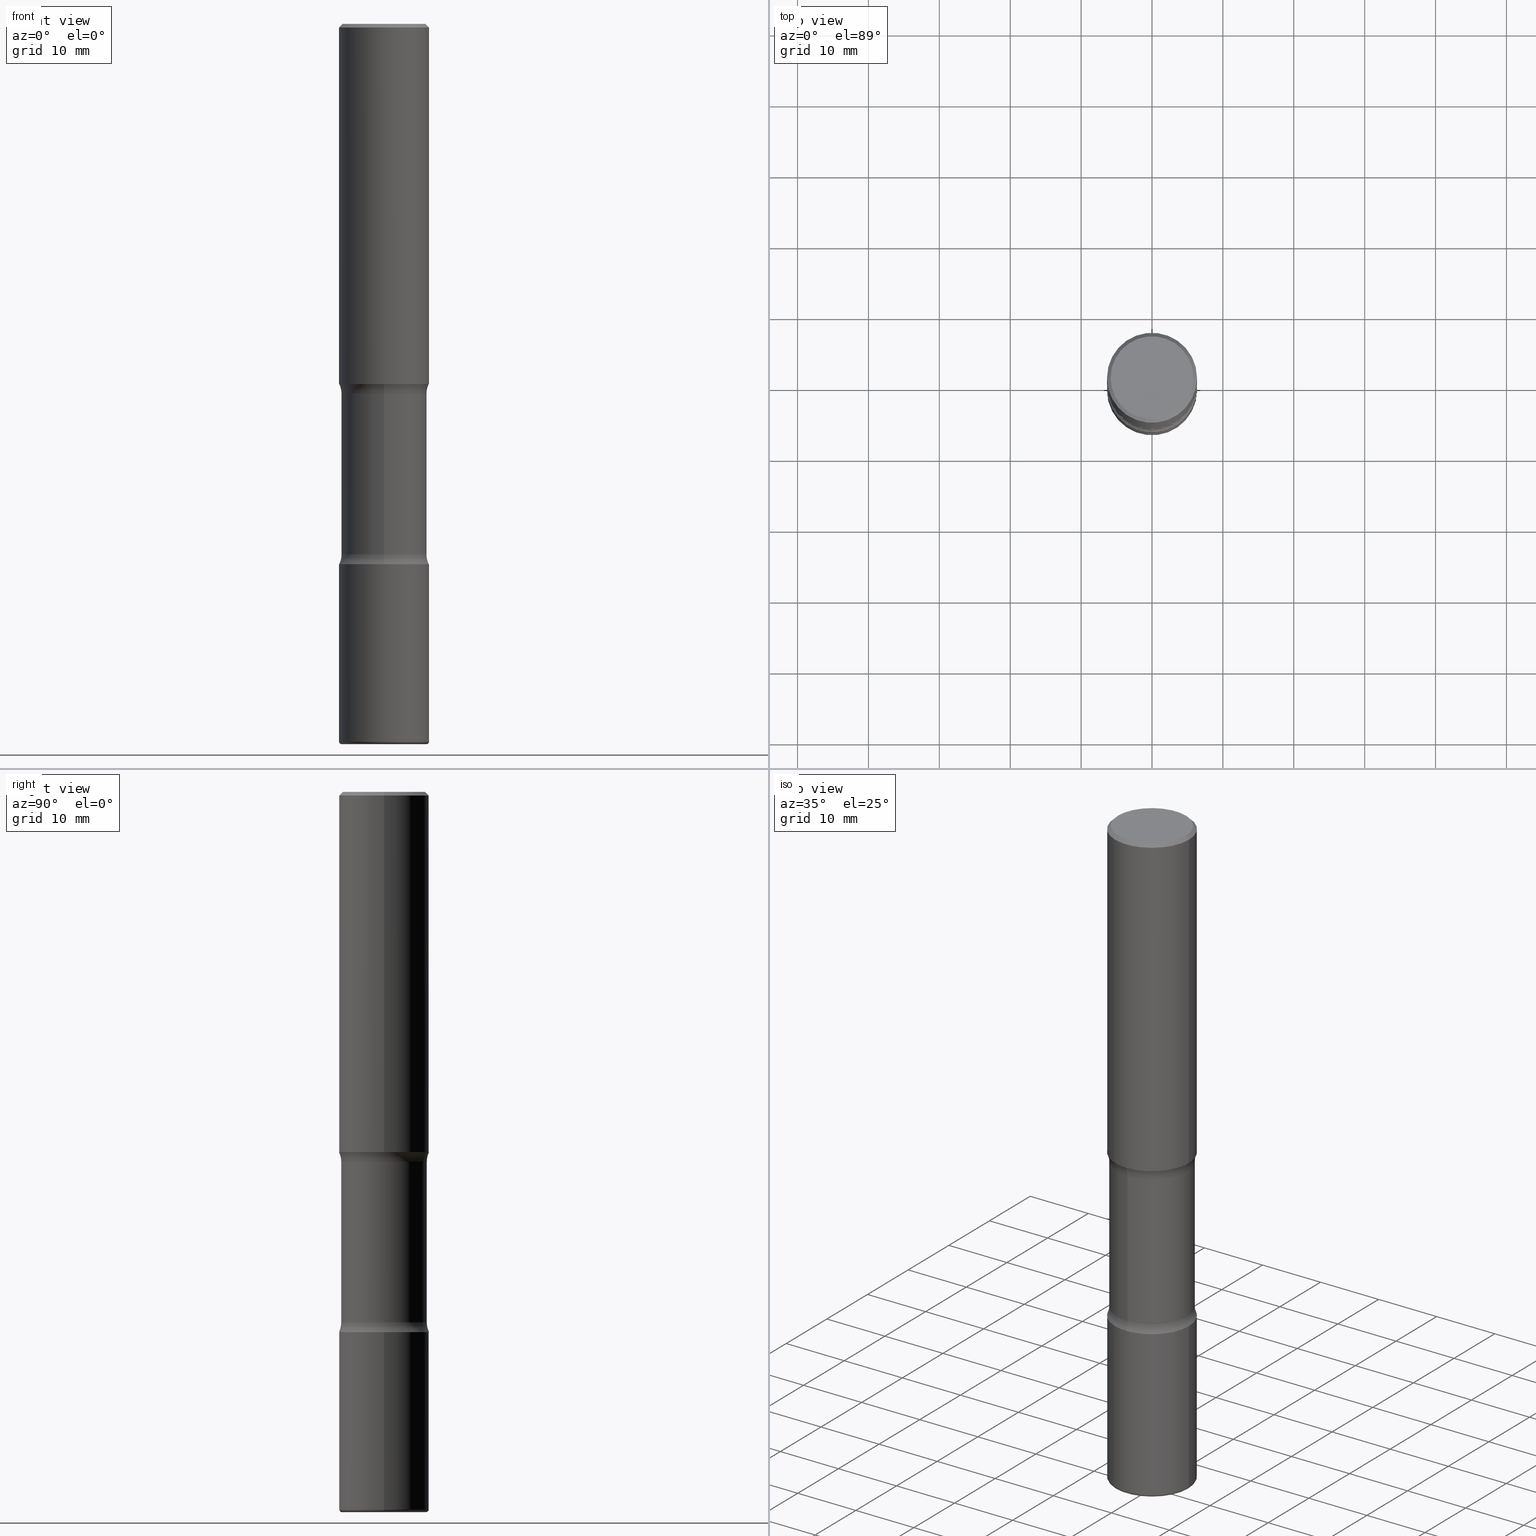
[diagram: canonical four-view strip — front | top / right | iso, engineering-drawing reading convention]
A machine part, canonical four-view strip (front | top / right | iso — engineering-drawing reading convention). The complete STEP part file that produces these views, byte-faithful:
ISO-10303-21;
HEADER;
FILE_DESCRIPTION (( 'STEP AP203' ),
    '1' );
FILE_NAME ('37875.STEP',
    '2024-03-02T00:58:17',
    ( '' ),
    ( '' ),
    'SwSTEP 2.0',
    'SolidWorks 2023',
    '' );
FILE_SCHEMA (( 'CONFIG_CONTROL_DESIGN' ));
ENDSEC;

DATA;
#1 = FACE_OUTER_BOUND ( 'NONE', #440, .T. ) ;
#2 = ADVANCED_FACE ( 'NONE', ( #272 ), #51, .T. ) ;
#3 = ORIENTED_EDGE ( 'NONE', *, *, #383, .T. ) ;
#4 = ORIENTED_EDGE ( 'NONE', *, *, #541, .T. ) ;
#5 = AXIS2_PLACEMENT_3D ( 'NONE', #339, #54, #244 ) ;
#6 = AXIS2_PLACEMENT_3D ( 'NONE', #296, #527, #111 ) ;
#7 = EDGE_LOOP ( 'NONE', ( #414, #81, #521, #128 ) ) ;
#8 = ORIENTED_EDGE ( 'NONE', *, *, #192, .F. ) ;
#9 = CARTESIAN_POINT ( 'NONE',  ( -1.672246386956763723E-15, -0.2375000000000074274, -2.054486236794258236 ) ) ;
#10 = EDGE_CURVE ( 'NONE', #130, #459, #42, .T. ) ;
#11 = DIRECTION ( 'NONE',  ( 1.000000000000000000, -6.982962677686266711E-15, 4.876176775795935793E-29 ) ) ;
#12 = CYLINDRICAL_SURFACE ( 'NONE', #313, 0.2500000000000000555 ) ;
#13 = DIRECTION ( 'NONE',  ( 1.000000000000000000, -6.982962677686267499E-15, 4.876176775795936353E-29 ) ) ;
#14 = DIRECTION ( 'NONE',  ( -1.000000000000000000, 6.982962677686265922E-15, -4.876176775795935793E-29 ) ) ;
#15 = CLOSED_SHELL ( 'NONE', ( #282, #406, #532, #213, #242, #35 ) ) ;
#16 = AXIS2_PLACEMENT_3D ( 'NONE', #26, #357, #25 ) ;
#17 = AXIS2_PLACEMENT_3D ( 'NONE', #143, #448, #489 ) ;
#18 = DIRECTION ( 'NONE',  ( -2.445468806185136597E-29, 3.491481338843145583E-15, 1.000000000000000000 ) ) ;
#19 = ORIENTED_EDGE ( 'NONE', *, *, #95, .T. ) ;
#20 = CIRCLE ( 'NONE', #300, 0.1250000000000000000 ) ;
#21 = APPLICATION_CONTEXT ( 'configuration controlled 3d designs of mechanical parts and assemblies' ) ;
#22 = AXIS2_PLACEMENT_3D ( 'NONE', #49, #523, #439 ) ;
#23 = AXIS2_PLACEMENT_3D ( 'NONE', #538, #303, #498 ) ;
#24 = CALENDAR_DATE ( 2024, 1, 3 ) ;
#25 = DIRECTION ( 'NONE',  ( 6.982962677686265133E-15, 1.000000000000000000, -3.278217592397110735E-15 ) ) ;
#26 = CARTESIAN_POINT ( 'NONE',  ( 4.806027966243888288E-29, -7.104558123696206156E-15, -2.000000000000000000 ) ) ;
#27 = AXIS2_PLACEMENT_3D ( 'NONE', #379, #455, #446 ) ;
#28 = APPROVAL_PERSON_ORGANIZATION ( #256, #38, #67 ) ;
#29 = DIRECTION ( 'NONE',  ( 6.982962677686265922E-15, 1.000000000000000000, -3.369885892833230986E-15 ) ) ;
#30 = EDGE_CURVE ( 'NONE', #459, #130, #363, .T. ) ;
#31 = DIRECTION ( 'NONE',  ( -2.445468806185136877E-29, 3.491481338843145188E-15, 1.000000000000000000 ) ) ;
#32 = PRODUCT_RELATED_PRODUCT_CATEGORY ( 'detail', '', ( #276 ) ) ;
#33 = ORIENTED_EDGE ( 'NONE', *, *, #44, .F. ) ;
#34 = DIRECTION ( 'NONE',  ( 2.530378452311521502E-29, -3.369885892833230986E-15, -1.000000000000000000 ) ) ;
#35 = ADVANCED_FACE ( 'NONE', ( #187 ), #12, .T. ) ;
#36 = AXIS2_PLACEMENT_3D ( 'NONE', #372, #94, #194 ) ;
#37 = FACE_OUTER_BOUND ( 'NONE', #91, .T. ) ;
#38 = APPROVAL ( #45, 'UNSPECIFIED' ) ;
#39 = DIRECTION ( 'NONE',  ( 6.982962677686265922E-15, 1.000000000000000000, -4.370956789862816416E-15 ) ) ;
#40 = FACE_OUTER_BOUND ( 'NONE', #7, .T. ) ;
#41 = ORIENTED_EDGE ( 'NONE', *, *, #243, .F. ) ;
#42 = CIRCLE ( 'NONE', #386, 0.2500000000000002776 ) ;
#43 = AXIS2_PLACEMENT_3D ( 'NONE', #382, #267, #87 ) ;
#44 = EDGE_CURVE ( 'NONE', #61, #105, #279, .T. ) ;
#45 = APPROVAL_STATUS ( 'not_yet_approved' ) ;
#46 = DIRECTION ( 'NONE',  ( -6.982962677686265922E-15, -1.000000000000000000, 3.369885892833230592E-15 ) ) ;
#47 = ORIENTED_EDGE ( 'NONE', *, *, #233, .F. ) ;
#48 = CARTESIAN_POINT ( 'NONE',  ( 9.866784870866931853E-29, -1.384432990936266734E-14, -4.000000000000000000 ) ) ;
#49 = CARTESIAN_POINT ( 'NONE',  ( 7.203162026108633562E-29, -1.028420633753849345E-14, -2.945513763205741320 ) ) ;
#50 = ORIENTED_EDGE ( 'NONE', *, *, #182, .T. ) ;
#51 = CYLINDRICAL_SURFACE ( 'NONE', #342, 0.2375000000000000999 ) ;
#52 = DIRECTION ( 'NONE',  ( 6.982962677686265922E-15, 1.000000000000000000, -3.369885892833230592E-15 ) ) ;
#53 = EDGE_LOOP ( 'NONE', ( #306, #60, #295, #482 ) ) ;
#54 = DIRECTION ( 'NONE',  ( -2.445468806185136597E-29, 3.491481338843145583E-15, 1.000000000000000000 ) ) ;
#55 = ORIENTED_EDGE ( 'NONE', *, *, #305, .F. ) ;
#56 = DIRECTION ( 'NONE',  ( -2.445468806185136597E-29, 3.491481338843145583E-15, 1.000000000000000000 ) ) ;
#57 = ORIENTED_EDGE ( 'NONE', *, *, #165, .F. ) ;
#58 = VECTOR ( 'NONE', #511, 39.37007874015748143 ) ;
#59 = CARTESIAN_POINT ( 'NONE',  ( 4.806027966243888288E-29, -7.104558123696206156E-15, -2.000000000000000000 ) ) ;
#60 = ORIENTED_EDGE ( 'NONE', *, *, #44, .T. ) ;
#61 = VERTEX_POINT ( 'NONE', #9 ) ;
#62 = VERTEX_POINT ( 'NONE', #405 ) ;
#63 = ORIENTED_EDGE ( 'NONE', *, *, #367, .F. ) ;
#64 = EDGE_LOOP ( 'NONE', ( #444, #249, #131, #369 ) ) ;
#65 = AXIS2_PLACEMENT_3D ( 'NONE', #246, #415, #539 ) ;
#66 = CARTESIAN_POINT ( 'NONE',  ( 4.890937612370273194E-29, -6.982962677686291165E-15, -2.000000000000000000 ) ) ;
#67 = APPROVAL_ROLE ( '' ) ;
#68 = DIRECTION ( 'NONE',  ( 2.530378452311521502E-29, -3.369885892833230986E-15, -1.000000000000000000 ) ) ;
#69 = LINE ( 'NONE', #257, #433 ) ;
#70 = EDGE_CURVE ( 'NONE', #373, #546, #188, .T. ) ;
#71 = AXIS2_PLACEMENT_3D ( 'NONE', #346, #542, #120 ) ;
#72 =( GEOMETRIC_REPRESENTATION_CONTEXT ( 3 ) GLOBAL_UNCERTAINTY_ASSIGNED_CONTEXT ( ( #503 ) ) GLOBAL_UNIT_ASSIGNED_CONTEXT ( ( #138, #402, #558 ) ) REPRESENTATION_CONTEXT ( 'NONE', 'WORKASPACE' ) );
#73 = DIRECTION ( 'NONE',  ( 2.530378452311521502E-29, -3.369885892833230986E-15, -1.000000000000000000 ) ) ;
#74 = LINE ( 'NONE', #391, #125 ) ;
#75 = COORDINATED_UNIVERSAL_TIME_OFFSET ( 5, 0, .BEHIND. ) ;
#76 = CARTESIAN_POINT ( 'NONE',  ( -0.2500000000000005551, -1.213719629588967887E-14, -3.984999999999999876 ) ) ;
#77 = VECTOR ( 'NONE', #362, 39.37007874015748143 ) ;
#78 = CC_DESIGN_APPROVAL ( #488, ( #434 ) ) ;
#79 = ORIENTED_EDGE ( 'NONE', *, *, #438, .F. ) ;
#80 = EDGE_LOOP ( 'NONE', ( #216, #519, #19, #288 ) ) ;
#81 = ORIENTED_EDGE ( 'NONE', *, *, #252, .F. ) ;
#82 = CARTESIAN_POINT ( 'NONE',  ( 4.943898765775623630E-29, -7.288170524422749615E-15, -2.054486236794258680 ) ) ;
#83 = ADVANCED_FACE ( 'NONE', ( #183 ), #411, .T. ) ;
#84 = CARTESIAN_POINT ( 'NONE',  ( 4.890937612370273194E-29, -6.982962677686291165E-15, -2.000000000000000000 ) ) ;
#85 = CARTESIAN_POINT ( 'NONE',  ( 7.336406418555409790E-29, -1.047444401652943635E-14, -3.000000000000000444 ) ) ;
#86 = CIRCLE ( 'NONE', #399, 0.2500000000000003886 ) ;
#87 = DIRECTION ( 'NONE',  ( 1.000000000000000000, -6.982962677686270655E-15, 0.000000000000000000 ) ) ;
#88 = FACE_OUTER_BOUND ( 'NONE', #495, .T. ) ;
#89 = CC_DESIGN_APPROVAL ( #38, ( #390 ) ) ;
#90 = DIRECTION ( 'NONE',  ( -1.000000000000000000, 6.982962677686267499E-15, 0.000000000000000000 ) ) ;
#91 = EDGE_LOOP ( 'NONE', ( #174, #537 ) ) ;
#92 = DIRECTION ( 'NONE',  ( -2.445468806185136597E-29, 3.491481338843145583E-15, 1.000000000000000000 ) ) ;
#93 = CYLINDRICAL_SURFACE ( 'NONE', #109, 0.2500000000000003331 ) ;
#94 = DIRECTION ( 'NONE',  ( 2.438088387897960049E-29, -3.491481338843145188E-15, -1.000000000000000000 ) ) ;
#95 = EDGE_CURVE ( 'NONE', #105, #309, #20, .T. ) ;
#96 = ORIENTED_EDGE ( 'NONE', *, *, #192, .T. ) ;
#97 = CARTESIAN_POINT ( 'NONE',  ( 1.658453635950538436E-15, 0.2374999999999928557, -2.054486236794259568 ) ) ;
#98 = CARTESIAN_POINT ( 'NONE',  ( -1.715124499442811104E-15, -0.2500000000000107692, -2.999999999999999556 ) ) ;
#99 = CARTESIAN_POINT ( 'NONE',  ( 4.890937612370289799E-31, -6.982962677686315028E-17, -0.02000000000000006981 ) ) ;
#100 = CARTESIAN_POINT ( 'NONE',  ( -1.715124499442836348E-15, -0.2500000000000074385, -1.999999999999999112 ) ) ;
#101 = AXIS2_PLACEMENT_3D ( 'NONE', #299, #221, #217 ) ;
#102 = MANIFOLD_SOLID_BREP ( 'Body-Move/Copy2[1]', #407 ) ;
#103 = ORIENTED_EDGE ( 'NONE', *, *, #289, .T. ) ;
#104 = DIRECTION ( 'NONE',  ( 6.982962677686265133E-15, 1.000000000000000000, -3.278217592397110735E-15 ) ) ;
#105 = VERTEX_POINT ( 'NONE', #97 ) ;
#106 = ORIENTED_EDGE ( 'NONE', *, *, #132, .T. ) ;
#107 = CARTESIAN_POINT ( 'NONE',  ( -2.486930524192108484E-15, -0.3625000000000104250, -2.945513763205740432 ) ) ;
#108 = PERSON ( 'UNSPECIFIED', 'UNSPECIFIED', 'UNSPECIFIED', ('UNSPECIFIED'), ('UNSPECIFIED'), ('UNSPECIFIED') ) ;
#109 = AXIS2_PLACEMENT_3D ( 'NONE', #271, #445, #140 ) ;
#110 = LOCAL_TIME ( 19, 58, 16.00000000000000000, #261 ) ;
#111 = DIRECTION ( 'NONE',  ( -1.000000000000000000, 7.105427357601066545E-15, 0.000000000000000000 ) ) ;
#112 = ORIENTED_EDGE ( 'NONE', *, *, #421, .T. ) ;
#113 = CARTESIAN_POINT ( 'NONE',  ( 0.2499999999999999167, -1.784954126219745400E-15, -0.02000000000000006981 ) ) ;
#114 = EDGE_CURVE ( 'NONE', #494, #151, #555, .T. ) ;
#115 = MANIFOLD_SOLID_BREP ( 'Body-Move/Copy2[2]', #15 ) ;
#116 = CARTESIAN_POINT ( 'NONE',  ( 9.745193192647769069E-29, -1.391355313528993407E-14, -3.984999999999999876 ) ) ;
#117 = CC_DESIGN_PERSON_AND_ORGANIZATION_ASSIGNMENT ( #458, #158, ( #465 ) ) ;
#118 = CARTESIAN_POINT ( 'NONE',  ( 7.198535619023675570E-29, -1.029083161580289368E-14, -2.945513763205741320 ) ) ;
#119 = AXIS2_PLACEMENT_3D ( 'NONE', #212, #262, #553 ) ;
#120 = DIRECTION ( 'NONE',  ( 1.000000000000000000, -6.982962677686217012E-15, 0.000000000000000000 ) ) ;
#121 = PERSON_AND_ORGANIZATION ( #108, #417 ) ;
#122 = ADVANCED_FACE ( 'NONE', ( #1 ), #513, .F. ) ;
#123 = PERSON_AND_ORGANIZATION ( #108, #417 ) ;
#124 = ORIENTED_EDGE ( 'NONE', *, *, #165, .T. ) ;
#125 = VECTOR ( 'NONE', #31, 39.37007874015748143 ) ;
#126 = DIRECTION ( 'NONE',  ( -2.445468806185136597E-29, 3.491481338843145583E-15, 1.000000000000000000 ) ) ;
#127 = TOROIDAL_SURFACE ( 'NONE', #509, 0.3625000000000000999, 0.1250000000000000000 ) ;
#128 = ORIENTED_EDGE ( 'NONE', *, *, #243, .T. ) ;
#129 = DESIGN_CONTEXT ( 'detailed design', #215, 'design' ) ;
#130 = VERTEX_POINT ( 'NONE', #98 ) ;
#131 = ORIENTED_EDGE ( 'NONE', *, *, #310, .T. ) ;
#132 = EDGE_CURVE ( 'NONE', #359, #62, #544, .T. ) ;
#133 = ADVANCED_BREP_SHAPE_REPRESENTATION ( '37875', ( #102, #115, #325, #23 ), #72 ) ;
#134 = APPROVAL_ROLE ( '' ) ;
#135 = ORIENTED_EDGE ( 'NONE', *, *, #389, .F. ) ;
#136 = AXIS2_PLACEMENT_3D ( 'NONE', #435, #232, #318 ) ;
#137 = CONICAL_SURFACE ( 'NONE', #545, 0.2499999999999999167, 0.7853981633974472798 ) ;
#138 =( CONVERSION_BASED_UNIT ( 'INCH', #524 ) LENGTH_UNIT ( ) NAMED_UNIT ( #450 ) );
#139 = CARTESIAN_POINT ( 'NONE',  ( 2.531323970661321775E-15, 0.3624999999999928280, -2.054486236794260012 ) ) ;
#140 = DIRECTION ( 'NONE',  ( 1.000000000000000000, -6.982962677686266711E-15, 4.876176775795935793E-29 ) ) ;
#141 = ORIENTED_EDGE ( 'NONE', *, *, #305, .T. ) ;
#142 = ORIENTED_EDGE ( 'NONE', *, *, #401, .F. ) ;
#143 = CARTESIAN_POINT ( 'NONE',  ( 7.203162026108633562E-29, -1.028420633753849345E-14, -2.945513763205741320 ) ) ;
#144 = CARTESIAN_POINT ( 'NONE',  ( 0.2499999999999999167, -1.784954126219745400E-15, -0.02000000000000006981 ) ) ;
#145 = EDGE_CURVE ( 'NONE', #424, #324, #461, .T. ) ;
#146 = DIRECTION ( 'NONE',  ( 2.438088387897960049E-29, -3.491481338843145188E-15, -1.000000000000000000 ) ) ;
#147 = DIRECTION ( 'NONE',  ( 1.000000000000000000, -6.982962677686267499E-15, 0.000000000000000000 ) ) ;
#148 = EDGE_LOOP ( 'NONE', ( #142, #237, #124, #293 ) ) ;
#149 = DIRECTION ( 'NONE',  ( 6.860497997771532351E-15, 1.000000000000000000, 0.000000000000000000 ) ) ;
#150 = CARTESIAN_POINT ( 'NONE',  ( 0.000000000000000000, 0.000000000000000000, 0.000000000000000000 ) ) ;
#151 = VERTEX_POINT ( 'NONE', #281 ) ;
#152 = CIRCLE ( 'NONE', #345, 0.2375000000000001277 ) ;
#153 = CC_DESIGN_SECURITY_CLASSIFICATION ( #434, ( #390 ) ) ;
#154 = DIRECTION ( 'NONE',  ( -2.445468806185136597E-29, 3.491481338843145583E-15, 1.000000000000000000 ) ) ;
#155 = ADVANCED_FACE ( 'NONE', ( #560 ), #263, .F. ) ;
#156 = ORIENTED_EDGE ( 'NONE', *, *, #294, .T. ) ;
#157 = ORIENTED_EDGE ( 'NONE', *, *, #485, .F. ) ;
#158 = PERSON_AND_ORGANIZATION_ROLE ( 'creator' ) ;
#159 = CARTESIAN_POINT ( 'NONE',  ( 0.2500000000000005551, -1.565929380471150390E-14, -3.984999999999999876 ) ) ;
#160 = TOROIDAL_SURFACE ( 'NONE', #184, 0.2350000000000003753, 0.01500000000000040364 ) ;
#161 = CARTESIAN_POINT ( 'NONE',  ( -0.2500000000000002776, -1.041764173650943238E-14, -3.000000000000000444 ) ) ;
#162 = ORIENTED_EDGE ( 'NONE', *, *, #114, .F. ) ;
#163 = ORIENTED_EDGE ( 'NONE', *, *, #438, .T. ) ;
#164 = CARTESIAN_POINT ( 'NONE',  ( 0.2299999999999998990, -1.681434332853598617E-15, 1.149527484987432660E-29 ) ) ;
#165 = EDGE_CURVE ( 'NONE', #460, #546, #355, .T. ) ;
#166 = DATE_AND_TIME ( #24, #356 ) ;
#167 = DIRECTION ( 'NONE',  ( 6.982962677686265133E-15, 1.000000000000000000, -3.450755360418014766E-15 ) ) ;
#168 = PERSON_AND_ORGANIZATION ( #108, #417 ) ;
#169 = DATE_TIME_ROLE ( 'creation_date' ) ;
#170 = LINE ( 'NONE', #353, #255 ) ;
#171 = PERSON_AND_ORGANIZATION_ROLE ( 'creator' ) ;
#172 = ORIENTED_EDGE ( 'NONE', *, *, #310, .F. ) ;
#173 = AXIS2_PLACEMENT_3D ( 'NONE', #275, #283, #180 ) ;
#174 = ORIENTED_EDGE ( 'NONE', *, *, #30, .T. ) ;
#175 = APPLICATION_PROTOCOL_DEFINITION ( 'international standard', 'config_control_design', 1994, #21 ) ;
#176 = AXIS2_PLACEMENT_3D ( 'NONE', #425, #469, #264 ) ;
#177 = DIRECTION ( 'NONE',  ( -0.7071067811865467956, 2.468850131082249172E-15, -0.7071067811865482389 ) ) ;
#178 = LINE ( 'NONE', #512, #77 ) ;
#179 = DATE_AND_TIME ( #350, #366 ) ;
#180 = DIRECTION ( 'NONE',  ( 6.982962677686265922E-15, 1.000000000000000000, -4.370956789862816416E-15 ) ) ;
#181 = VERTEX_POINT ( 'NONE', #528 ) ;
#182 = EDGE_CURVE ( 'NONE', #492, #258, #290, .T. ) ;
#183 = FACE_OUTER_BOUND ( 'NONE', #53, .T. ) ;
#184 = AXIS2_PLACEMENT_3D ( 'NONE', #116, #384, #308 ) ;
#185 = APPROVAL_STATUS ( 'not_yet_approved' ) ;
#186 = AXIS2_PLACEMENT_3D ( 'NONE', #315, #473, #46 ) ;
#187 = FACE_OUTER_BOUND ( 'NONE', #478, .T. ) ;
#188 = LINE ( 'NONE', #241, #329 ) ;
#189 = PLANE ( 'NONE',  #36 ) ;
#190 = DIRECTION ( 'NONE',  ( 2.530378452311521502E-29, -3.369885892833230986E-15, -1.000000000000000000 ) ) ;
#191 = FACE_OUTER_BOUND ( 'NONE', #148, .T. ) ;
#192 = EDGE_CURVE ( 'NONE', #151, #494, #270, .T. ) ;
#193 = AXIS2_PLACEMENT_3D ( 'NONE', #201, #451, #14 ) ;
#194 = DIRECTION ( 'NONE',  ( -1.000000000000000000, 6.982962677686265922E-15, -4.876176775795935793E-29 ) ) ;
#195 = APPROVAL_PERSON_ORGANIZATION ( #123, #488, #347 ) ;
#196 = CARTESIAN_POINT ( 'NONE',  ( 7.336406418555409790E-29, -1.047444401652943635E-14, -3.000000000000000444 ) ) ;
#197 = DIRECTION ( 'NONE',  ( 1.000000000000000000, -6.982962677686267499E-15, 0.000000000000000000 ) ) ;
#198 = CARTESIAN_POINT ( 'NONE',  ( 9.745193192647769069E-29, -1.391355313528993407E-14, -3.984999999999999876 ) ) ;
#199 = ORIENTED_EDGE ( 'NONE', *, *, #340, .F. ) ;
#200 = EDGE_LOOP ( 'NONE', ( #351, #240, #106, #172 ) ) ;
#201 = CARTESIAN_POINT ( 'NONE',  ( 1.606081415867840476E-15, 0.2299999999999998990, -8.030407079339231961E-16 ) ) ;
#202 = PRODUCT_DEFINITION_SHAPE ( 'NONE', 'NONE',  #465 ) ;
#203 = EDGE_CURVE ( 'NONE', #130, #359, #214, .T. ) ;
#204 = DIRECTION ( 'NONE',  ( -2.445468806185136597E-29, 3.491481338843145583E-15, 1.000000000000000000 ) ) ;
#205 = CIRCLE ( 'NONE', #65, 0.1250000000000000000 ) ;
#206 = EDGE_LOOP ( 'NONE', ( #96, #4, #395, #486 ) ) ;
#207 = AXIS2_PLACEMENT_3D ( 'NONE', #198, #204, #530 ) ;
#208 = APPROVAL ( #185, 'UNSPECIFIED' ) ;
#209 = VERTEX_POINT ( 'NONE', #100 ) ;
#210 = ADVANCED_FACE ( 'NONE', ( #334 ), #314, .F. ) ;
#211 = ORIENTED_EDGE ( 'NONE', *, *, #182, .F. ) ;
#212 = CARTESIAN_POINT ( 'NONE',  ( 2.531323970661343863E-15, 0.3624999999999897748, -2.945513763205742652 ) ) ;
#213 = ADVANCED_FACE ( 'NONE', ( #338 ), #292, .F. ) ;
#214 = CIRCLE ( 'NONE', #490, 0.1250000000000000278 ) ;
#215 = APPLICATION_CONTEXT ( 'configuration controlled 3d designs of mechanical parts and assemblies' ) ;
#216 = ORIENTED_EDGE ( 'NONE', *, *, #421, .F. ) ;
#217 = DIRECTION ( 'NONE',  ( 1.000000000000000000, -6.982962677686267499E-15, 0.000000000000000000 ) ) ;
#218 = CYLINDRICAL_SURFACE ( 'NONE', #176, 0.2500000000000000555 ) ;
#219 = CALENDAR_DATE ( 2024, 1, 3 ) ;
#220 = ORIENTED_EDGE ( 'NONE', *, *, #541, .F. ) ;
#221 = DIRECTION ( 'NONE',  ( -2.445468806185136597E-29, 3.491481338843145583E-15, 1.000000000000000000 ) ) ;
#222 = CC_DESIGN_PERSON_AND_ORGANIZATION_ASSIGNMENT ( #403, #284, ( #276 ) ) ;
#223 = CLOSED_SHELL ( 'NONE', ( #2, #210, #559, #360, #122, #506, #155, #83 ) ) ;
#224 = CIRCLE ( 'NONE', #301, 0.2500000000000001665 ) ;
#225 = ORIENTED_EDGE ( 'NONE', *, *, #95, .F. ) ;
#226 = EDGE_CURVE ( 'NONE', #209, #309, #86, .T. ) ;
#227 = APPLICATION_PROTOCOL_DEFINITION ( 'international standard', 'config_control_design', 1994, #215 ) ;
#228 = DIRECTION ( 'NONE',  ( 1.000000000000000000, -6.982962677686270655E-15, 0.000000000000000000 ) ) ;
#229 = APPROVAL_DATE_TIME ( #394, #38 ) ;
#230 = DIRECTION ( 'NONE',  ( 2.530378452311521502E-29, -3.369885892833230986E-15, -1.000000000000000000 ) ) ;
#231 = DIRECTION ( 'NONE',  ( -2.445468806185136877E-29, 3.491481338843145188E-15, 1.000000000000000000 ) ) ;
#232 = DIRECTION ( 'NONE',  ( 2.530378452311521502E-29, -3.369885892833230986E-15, -1.000000000000000000 ) ) ;
#233 = EDGE_CURVE ( 'NONE', #62, #359, #416, .T. ) ;
#234 = CARTESIAN_POINT ( 'NONE',  ( 4.890937612370289799E-31, -6.982962677686315028E-17, -0.02000000000000006981 ) ) ;
#235 = DIRECTION ( 'NONE',  ( -2.445468806185136597E-29, 3.491481338843145583E-15, 1.000000000000000000 ) ) ;
#236 = EDGE_LOOP ( 'NONE', ( #531, #50, #420, #253 ) ) ;
#237 = ORIENTED_EDGE ( 'NONE', *, *, #265, .T. ) ;
#238 = DIRECTION ( 'NONE',  ( 6.982962677686265922E-15, 1.000000000000000000, -3.369885892833230986E-15 ) ) ;
#239 = AXIS2_PLACEMENT_3D ( 'NONE', #82, #230, #410 ) ;
#240 = ORIENTED_EDGE ( 'NONE', *, *, #203, .T. ) ;
#241 = CARTESIAN_POINT ( 'NONE',  ( -0.2500000000000000555, 1.776356839400250859E-15, -1.229733772563726866E-29 ) ) ;
#242 = ADVANCED_FACE ( 'NONE', ( #349 ), #462, .F. ) ;
#243 = EDGE_CURVE ( 'NONE', #546, #460, #422, .T. ) ;
#244 = DIRECTION ( 'NONE',  ( 1.000000000000000000, -6.982962677686268288E-15, 0.000000000000000000 ) ) ;
#245 = DIRECTION ( 'NONE',  ( 1.000000000000000000, -6.982962677686268288E-15, 0.000000000000000000 ) ) ;
#246 = CARTESIAN_POINT ( 'NONE',  ( -2.486930524192130572E-15, -0.3625000000000073164, -2.054486236794257792 ) ) ;
#247 = CIRCLE ( 'NONE', #381, 0.2299999999999998990 ) ;
#248 = CARTESIAN_POINT ( 'NONE',  ( -0.2499999999999999167, 1.675911042644703182E-15, -0.02000000000000006981 ) ) ;
#249 = ORIENTED_EDGE ( 'NONE', *, *, #30, .F. ) ;
#250 = DIRECTION ( 'NONE',  ( 2.530378452311521502E-29, -3.369885892833230592E-15, -1.000000000000000000 ) ) ;
#251 = FACE_OUTER_BOUND ( 'NONE', #206, .T. ) ;
#252 = EDGE_CURVE ( 'NONE', #500, #278, #441, .T. ) ;
#253 = ORIENTED_EDGE ( 'NONE', *, *, #145, .F. ) ;
#254 = DIRECTION ( 'NONE',  ( 1.000000000000000000, -6.860497997771530774E-15, 4.842287994361612002E-29 ) ) ;
#255 = VECTOR ( 'NONE', #507, 39.37007874015748143 ) ;
#256 = PERSON_AND_ORGANIZATION ( #108, #417 ) ;
#257 = CARTESIAN_POINT ( 'NONE',  ( -0.2499999999999999167, 1.675911042644703182E-15, -0.02000000000000006981 ) ) ;
#258 = VERTEX_POINT ( 'NONE', #159 ) ;
#259 = EDGE_CURVE ( 'NONE', #105, #61, #152, .T. ) ;
#260 = FACE_OUTER_BOUND ( 'NONE', #319, .T. ) ;
#261 = COORDINATED_UNIVERSAL_TIME_OFFSET ( 5, 0, .BEHIND. ) ;
#262 = DIRECTION ( 'NONE',  ( -1.000000000000000000, 6.982962677686265922E-15, -4.883557194083112340E-29 ) ) ;
#263 = TOROIDAL_SURFACE ( 'NONE', #22, 0.3625000000000000999, 0.1250000000000000278 ) ;
#264 = DIRECTION ( 'NONE',  ( 1.000000000000000000, -6.982962677686267499E-15, 4.876176775795935793E-29 ) ) ;
#265 = EDGE_CURVE ( 'NONE', #278, #460, #316, .T. ) ;
#266 = SHAPE_DEFINITION_REPRESENTATION ( #202, #133 ) ;
#267 = DIRECTION ( 'NONE',  ( -2.445468806185136597E-29, 3.491481338843145583E-15, 1.000000000000000000 ) ) ;
#268 = FACE_OUTER_BOUND ( 'NONE', #540, .T. ) ;
#269 = ORIENTED_EDGE ( 'NONE', *, *, #145, .T. ) ;
#270 = CIRCLE ( 'NONE', #5, 0.2350000000000003753 ) ;
#271 = CARTESIAN_POINT ( 'NONE',  ( 0.000000000000000000, 0.000000000000000000, 0.000000000000000000 ) ) ;
#272 = FACE_OUTER_BOUND ( 'NONE', #380, .T. ) ;
#273 = PERSON_AND_ORGANIZATION ( #108, #417 ) ;
#274 = EDGE_CURVE ( 'NONE', #500, #546, #69, .T. ) ;
#275 = CARTESIAN_POINT ( 'NONE',  ( 7.336406418555409790E-29, -1.047444401652943635E-14, -3.000000000000000444 ) ) ;
#276 = PRODUCT ( '37875', '37875', '', ( #552 ) ) ;
#277 = DIRECTION ( 'NONE',  ( 1.000000000000000000, -6.982962677686265922E-15, 0.000000000000000000 ) ) ;
#278 = VERTEX_POINT ( 'NONE', #164 ) ;
#279 = CIRCLE ( 'NONE', #239, 0.2375000000000001277 ) ;
#280 = VECTOR ( 'NONE', #471, 39.37007874015748143 ) ;
#281 = CARTESIAN_POINT ( 'NONE',  ( 0.2350000000000003753, -1.560692158462886037E-14, -4.000000000000000888 ) ) ;
#282 = ADVANCED_FACE ( 'NONE', ( #260 ), #218, .T. ) ;
#283 = DIRECTION ( 'NONE',  ( 2.530378452311521502E-29, -3.369885892833230986E-15, -1.000000000000000000 ) ) ;
#284 = PERSON_AND_ORGANIZATION_ROLE ( 'design_owner' ) ;
#285 = CARTESIAN_POINT ( 'NONE',  ( 9.781875224740547508E-29, -1.396592535537258391E-14, -4.000000000000000888 ) ) ;
#286 = DIRECTION ( 'NONE',  ( 2.445468806185136597E-29, -3.491481338843145583E-15, -1.000000000000000000 ) ) ;
#287 = DIRECTION ( 'NONE',  ( -1.000000000000000000, 6.982962677686267499E-15, 0.000000000000000000 ) ) ;
#288 = ORIENTED_EDGE ( 'NONE', *, *, #302, .T. ) ;
#289 = EDGE_CURVE ( 'NONE', #151, #258, #388, .T. ) ;
#290 = CIRCLE ( 'NONE', #27, 0.2500000000000003886 ) ;
#291 = CIRCLE ( 'NONE', #6, 0.01500000000000038629 ) ;
#292 = PLANE ( 'NONE',  #193 ) ;
#293 = ORIENTED_EDGE ( 'NONE', *, *, #274, .F. ) ;
#294 = EDGE_CURVE ( 'NONE', #492, #424, #74, .T. ) ;
#295 = ORIENTED_EDGE ( 'NONE', *, *, #340, .T. ) ;
#296 = CARTESIAN_POINT ( 'NONE',  ( -0.2350000000000003753, -1.224377770625369636E-14, -3.984999999999999876 ) ) ;
#297 = ORIENTED_EDGE ( 'NONE', *, *, #401, .T. ) ;
#298 = ORIENTED_EDGE ( 'NONE', *, *, #302, .F. ) ;
#299 = CARTESIAN_POINT ( 'NONE',  ( 4.890937612370289799E-31, -6.982962677686315028E-17, -0.02000000000000006981 ) ) ;
#300 = AXIS2_PLACEMENT_3D ( 'NONE', #139, #333, #487 ) ;
#301 = AXIS2_PLACEMENT_3D ( 'NONE', #84, #235, #277 ) ;
#302 = EDGE_CURVE ( 'NONE', #309, #209, #496, .T. ) ;
#303 = DIRECTION ( 'NONE',  ( 0.000000000000000000, 0.000000000000000000, 1.000000000000000000 ) ) ;
#304 = LOCAL_TIME ( 19, 58, 16.00000000000000000, #368 ) ;
#305 = EDGE_CURVE ( 'NONE', #181, #460, #393, .T. ) ;
#306 = ORIENTED_EDGE ( 'NONE', *, *, #400, .F. ) ;
#307 = CARTESIAN_POINT ( 'NONE',  ( 0.000000000000000000, 0.000000000000000000, 0.000000000000000000 ) ) ;
#308 = DIRECTION ( 'NONE',  ( 1.000000000000000000, -6.982962677686265133E-15, 4.883557194083112340E-29 ) ) ;
#309 = VERTEX_POINT ( 'NONE', #547 ) ;
#310 = EDGE_CURVE ( 'NONE', #459, #62, #449, .T. ) ;
#311 = DIRECTION ( 'NONE',  ( 2.530378452311521502E-29, -3.369885892833230986E-15, -1.000000000000000000 ) ) ;
#312 = PERSON_AND_ORGANIZATION_ROLE ( 'design_supplier' ) ;
#313 = AXIS2_PLACEMENT_3D ( 'NONE', #437, #92, #479 ) ;
#314 = TOROIDAL_SURFACE ( 'NONE', #17, 0.3625000000000000999, 0.1250000000000000278 ) ;
#315 = CARTESIAN_POINT ( 'NONE',  ( 7.336406418555409790E-29, -1.047444401652943635E-14, -3.000000000000000444 ) ) ;
#316 = LINE ( 'NONE', #113, #280 ) ;
#317 = APPROVAL_STATUS ( 'not_yet_approved' ) ;
#318 = DIRECTION ( 'NONE',  ( 6.982962677686265133E-15, 1.000000000000000000, -2.300503573612010239E-15 ) ) ;
#319 = EDGE_LOOP ( 'NONE', ( #163, #517, #57, #55 ) ) ;
#320 = CARTESIAN_POINT ( 'NONE',  ( -0.2350000000000003753, -1.221667311111301332E-14, -4.000000000000000888 ) ) ;
#321 = AXIS2_PLACEMENT_3D ( 'NONE', #322, #250, #52 ) ;
#322 = CARTESIAN_POINT ( 'NONE',  ( 4.890937612370273194E-29, -6.982962677686291165E-15, -2.000000000000000000 ) ) ;
#323 = ORIENTED_EDGE ( 'NONE', *, *, #400, .T. ) ;
#324 = VERTEX_POINT ( 'NONE', #501 ) ;
#325 = MANIFOLD_SOLID_BREP ( 'Body-Move/Copy2[4]', #223 ) ;
#326 = ORIENTED_EDGE ( 'NONE', *, *, #389, .T. ) ;
#327 = CALENDAR_DATE ( 2024, 1, 3 ) ;
#328 = EDGE_LOOP ( 'NONE', ( #33, #112, #378, #225 ) ) ;
#329 = VECTOR ( 'NONE', #361, 39.37007874015748143 ) ;
#330 = CIRCLE ( 'NONE', #477, 0.2500000000000003886 ) ;
#331 = APPROVAL_PERSON_ORGANIZATION ( #273, #208, #134 ) ;
#332 = ORIENTED_EDGE ( 'NONE', *, *, #259, .T. ) ;
#333 = DIRECTION ( 'NONE',  ( -1.000000000000000000, 6.982962677686265922E-15, -4.883557194083112340E-29 ) ) ;
#334 = FACE_OUTER_BOUND ( 'NONE', #200, .T. ) ;
#335 = CC_DESIGN_DATE_AND_TIME_ASSIGNMENT ( #166, #169, ( #465 ) ) ;
#336 = AXIS2_PLACEMENT_3D ( 'NONE', #307, #429, #556 ) ;
#337 = CONICAL_SURFACE ( 'NONE', #536, 0.2499999999999999167, 0.7853981633974472798 ) ;
#338 = FACE_OUTER_BOUND ( 'NONE', #468, .T. ) ;
#339 = CARTESIAN_POINT ( 'NONE',  ( 9.781875224740547508E-29, -1.396592535537258391E-14, -4.000000000000000888 ) ) ;
#340 = EDGE_CURVE ( 'NONE', #105, #62, #170, .T. ) ;
#341 = CARTESIAN_POINT ( 'NONE',  ( 4.976491023364875751E-29, -7.241496556518841686E-15, -2.054486236794258680 ) ) ;
#342 = AXIS2_PLACEMENT_3D ( 'NONE', #48, #447, #484 ) ;
#343 = CARTESIAN_POINT ( 'NONE',  ( -1.672246386956739071E-15, -0.2375000000000103417, -2.945513763205740876 ) ) ;
#344 = AXIS2_PLACEMENT_3D ( 'NONE', #476, #18, #228 ) ;
#345 = AXIS2_PLACEMENT_3D ( 'NONE', #466, #73, #167 ) ;
#346 = CARTESIAN_POINT ( 'NONE',  ( 0.2350000000000003753, -1.555454936454621053E-14, -3.984999999999999876 ) ) ;
#347 = APPROVAL_ROLE ( '' ) ;
#348 = ADVANCED_FACE ( 'NONE', ( #268 ), #160, .T. ) ;
#349 = FACE_OUTER_BOUND ( 'NONE', #430, .T. ) ;
#350 = CALENDAR_DATE ( 2024, 1, 3 ) ;
#351 = ORIENTED_EDGE ( 'NONE', *, *, #10, .F. ) ;
#352 = CC_DESIGN_PERSON_AND_ORGANIZATION_ASSIGNMENT ( #168, #312, ( #390 ) ) ;
#353 = CARTESIAN_POINT ( 'NONE',  ( 1.658453635950587543E-15, 0.2374999999999862776, -4.000000000000000888 ) ) ;
#354 = AXIS2_PLACEMENT_3D ( 'NONE', #365, #190, #526 ) ;
#355 = CIRCLE ( 'NONE', #515, 0.2499999999999999167 ) ;
#356 = LOCAL_TIME ( 19, 58, 16.00000000000000000, #385 ) ;
#357 = DIRECTION ( 'NONE',  ( 2.530378452311521502E-29, -3.369885892833230986E-15, -1.000000000000000000 ) ) ;
#358 = PERSON_AND_ORGANIZATION_ROLE ( 'classification_officer' ) ;
#359 = VERTEX_POINT ( 'NONE', #343 ) ;
#360 = ADVANCED_FACE ( 'NONE', ( #497 ), #483, .F. ) ;
#361 = DIRECTION ( 'NONE',  ( -2.445468806185136877E-29, 3.491481338843145188E-15, 1.000000000000000000 ) ) ;
#362 = DIRECTION ( 'NONE',  ( 2.530378452311521502E-29, -3.369885892833230592E-15, -1.000000000000000000 ) ) ;
#363 = CIRCLE ( 'NONE', #173, 0.2500000000000002776 ) ;
#364 = AXIS2_PLACEMENT_3D ( 'NONE', #118, #311, #463 ) ;
#365 = CARTESIAN_POINT ( 'NONE',  ( 9.866784870866931853E-29, -1.384432990936266734E-14, -4.000000000000000000 ) ) ;
#366 = LOCAL_TIME ( 19, 58, 16.00000000000000000, #75 ) ;
#367 = EDGE_CURVE ( 'NONE', #373, #181, #557, .T. ) ;
#368 = COORDINATED_UNIVERSAL_TIME_OFFSET ( 5, 0, .BEHIND. ) ;
#369 = ORIENTED_EDGE ( 'NONE', *, *, #233, .T. ) ;
#370 = DIRECTION ( 'NONE',  ( -1.000000000000000000, 6.982962677686265922E-15, -4.876176775795935793E-29 ) ) ;
#371 = CC_DESIGN_DATE_AND_TIME_ASSIGNMENT ( #179, #467, ( #434 ) ) ;
#372 = CARTESIAN_POINT ( 'NONE',  ( 3.287784133380669782E-29, -2.326583341891048903E-14, -4.000000000000000000 ) ) ;
#373 = VERTEX_POINT ( 'NONE', #404 ) ;
#374 = AXIS2_PLACEMENT_3D ( 'NONE', #196, #146, #370 ) ;
#375 = VECTOR ( 'NONE', #231, 39.37007874015748143 ) ;
#376 = ADVANCED_FACE ( 'NONE', ( #412 ), #93, .T. ) ;
#377 = CARTESIAN_POINT ( 'NONE',  ( 1.745740669421641422E-15, 0.2499999999999897582, -3.000000000000000888 ) ) ;
#378 = ORIENTED_EDGE ( 'NONE', *, *, #226, .T. ) ;
#379 = CARTESIAN_POINT ( 'NONE',  ( 9.745193192647769069E-29, -1.391355313528993407E-14, -3.984999999999999876 ) ) ;
#380 = EDGE_LOOP ( 'NONE', ( #332, #323, #47, #199 ) ) ;
#381 = AXIS2_PLACEMENT_3D ( 'NONE', #514, #126, #13 ) ;
#382 = CARTESIAN_POINT ( 'NONE',  ( 7.336406418555409790E-29, -1.047444401652943635E-14, -3.000000000000000444 ) ) ;
#383 = EDGE_CURVE ( 'NONE', #258, #492, #330, .T. ) ;
#384 = DIRECTION ( 'NONE',  ( -2.445468806185136597E-29, 3.491481338843145583E-15, 1.000000000000000000 ) ) ;
#385 = COORDINATED_UNIVERSAL_TIME_OFFSET ( 5, 0, .BEHIND. ) ;
#386 = AXIS2_PLACEMENT_3D ( 'NONE', #85, #442, #39 ) ;
#387 = DIRECTION ( 'NONE',  ( 1.000000000000000000, -6.982962677686265922E-15, 4.876176775795935793E-29 ) ) ;
#388 = CIRCLE ( 'NONE', #71, 0.01500000000000038629 ) ;
#389 = EDGE_CURVE ( 'NONE', #324, #424, #470, .T. ) ;
#390 = PRODUCT_DEFINITION_FORMATION_WITH_SPECIFIED_SOURCE ( 'ANY', '', #276, .NOT_KNOWN. ) ;
#391 = CARTESIAN_POINT ( 'NONE',  ( -0.2500000000000003331, 1.776356839400252831E-15, -1.229733772563727987E-29 ) ) ;
#392 = CC_DESIGN_PERSON_AND_ORGANIZATION_ASSIGNMENT ( #510, #358, ( #434 ) ) ;
#393 = LINE ( 'NONE', #426, #58 ) ;
#394 = DATE_AND_TIME ( #327, #110 ) ;
#395 = ORIENTED_EDGE ( 'NONE', *, *, #383, .F. ) ;
#396 = DIRECTION ( 'NONE',  ( -2.438088387897960049E-29, 3.491481338843145188E-15, 1.000000000000000000 ) ) ;
#397 = APPROVAL_DATE_TIME ( #505, #488 ) ;
#398 = AXIS2_PLACEMENT_3D ( 'NONE', #285, #56, #245 ) ;
#399 = AXIS2_PLACEMENT_3D ( 'NONE', #59, #491, #104 ) ;
#400 = EDGE_CURVE ( 'NONE', #61, #359, #178, .T. ) ;
#401 = EDGE_CURVE ( 'NONE', #278, #500, #247, .T. ) ;
#402 =( NAMED_UNIT ( * ) PLANE_ANGLE_UNIT ( ) SI_UNIT ( $, .RADIAN. ) );
#403 = PERSON_AND_ORGANIZATION ( #108, #417 ) ;
#404 = CARTESIAN_POINT ( 'NONE',  ( -0.2500000000000001665, -1.750039312831323809E-15, -2.000000000000000000 ) ) ;
#405 = CARTESIAN_POINT ( 'NONE',  ( 1.658453635950560525E-15, 0.2374999999999897748, -2.945513763205741764 ) ) ;
#406 = ADVANCED_FACE ( 'NONE', ( #191 ), #137, .T. ) ;
#407 = CLOSED_SHELL ( 'NONE', ( #432, #543, #454, #348, #376, #472 ) ) ;
#408 = CARTESIAN_POINT ( 'NONE',  ( 4.890937612370289799E-31, -6.982962677686315028E-17, -0.02000000000000006981 ) ) ;
#409 = EDGE_LOOP ( 'NONE', ( #3, #156, #135, #157 ) ) ;
#410 = DIRECTION ( 'NONE',  ( 6.982962677686265133E-15, 1.000000000000000000, -3.450755360418014766E-15 ) ) ;
#411 = CYLINDRICAL_SURFACE ( 'NONE', #354, 0.2375000000000000999 ) ;
#412 = FACE_OUTER_BOUND ( 'NONE', #236, .T. ) ;
#413 = DIRECTION ( 'NONE',  ( 2.445468806185136597E-29, -3.491481338843145583E-15, -1.000000000000000000 ) ) ;
#414 = ORIENTED_EDGE ( 'NONE', *, *, #265, .F. ) ;
#415 = DIRECTION ( 'NONE',  ( 1.000000000000000000, -6.860497997771530774E-15, 4.842287994361612002E-29 ) ) ;
#416 = CIRCLE ( 'NONE', #364, 0.2375000000000000722 ) ;
#417 = ORGANIZATION ( 'UNSPECIFIED', 'UNSPECIFIED', '' ) ;
#418 = CC_DESIGN_APPROVAL ( #208, ( #465 ) ) ;
#419 = CARTESIAN_POINT ( 'NONE',  ( 9.745193192647769069E-29, -1.391355313528993407E-14, -3.984999999999999876 ) ) ;
#420 = ORIENTED_EDGE ( 'NONE', *, *, #485, .T. ) ;
#421 = EDGE_CURVE ( 'NONE', #61, #209, #205, .T. ) ;
#422 = CIRCLE ( 'NONE', #101, 0.2499999999999999167 ) ;
#423 = LOCAL_TIME ( 19, 58, 16.00000000000000000, #474 ) ;
#424 = VERTEX_POINT ( 'NONE', #161 ) ;
#425 = CARTESIAN_POINT ( 'NONE',  ( 0.000000000000000000, 0.000000000000000000, 0.000000000000000000 ) ) ;
#426 = CARTESIAN_POINT ( 'NONE',  ( 0.2500000000000000555, -1.745740669421567269E-15, 1.219044193948984228E-29 ) ) ;
#427 = CARTESIAN_POINT ( 'NONE',  ( 4.976491023364875751E-29, -7.241496556518841686E-15, -2.054486236794258680 ) ) ;
#428 = AXIS2_PLACEMENT_3D ( 'NONE', #504, #549, #431 ) ;
#429 = DIRECTION ( 'NONE',  ( -2.445468806185136597E-29, 3.491481338843145583E-15, 1.000000000000000000 ) ) ;
#430 = EDGE_LOOP ( 'NONE', ( #79, #63 ) ) ;
#431 = DIRECTION ( 'NONE',  ( 1.000000000000000000, -6.982962677686265922E-15, 0.000000000000000000 ) ) ;
#432 = ADVANCED_FACE ( 'NONE', ( #464 ), #534, .T. ) ;
#433 = VECTOR ( 'NONE', #177, 39.37007874015748143 ) ;
#434 = SECURITY_CLASSIFICATION ( '', '', #550 ) ;
#435 = CARTESIAN_POINT ( 'NONE',  ( 7.198535619023675570E-29, -1.029083161580289368E-14, -2.945513763205741320 ) ) ;
#436 = DIRECTION ( 'NONE',  ( -2.445468806185136597E-29, 3.491481338843145583E-15, 1.000000000000000000 ) ) ;
#437 = CARTESIAN_POINT ( 'NONE',  ( 0.000000000000000000, 0.000000000000000000, 0.000000000000000000 ) ) ;
#438 = EDGE_CURVE ( 'NONE', #181, #373, #224, .T. ) ;
#439 = DIRECTION ( 'NONE',  ( 6.982962677686265922E-15, 1.000000000000000000, -3.369885892833230986E-15 ) ) ;
#440 = EDGE_LOOP ( 'NONE', ( #298, #456 ) ) ;
#441 = CIRCLE ( 'NONE', #336, 0.2299999999999998990 ) ;
#442 = DIRECTION ( 'NONE',  ( 2.530378452311521502E-29, -3.369885892833230986E-15, -1.000000000000000000 ) ) ;
#443 = DIRECTION ( 'NONE',  ( -2.445468806185136597E-29, 3.491481338843145583E-15, 1.000000000000000000 ) ) ;
#444 = ORIENTED_EDGE ( 'NONE', *, *, #203, .F. ) ;
#445 = DIRECTION ( 'NONE',  ( -2.445468806185136597E-29, 3.491481338843145583E-15, 1.000000000000000000 ) ) ;
#446 = DIRECTION ( 'NONE',  ( 1.000000000000000000, -6.982962677686267499E-15, 0.000000000000000000 ) ) ;
#447 = DIRECTION ( 'NONE',  ( 2.530378452311521502E-29, -3.369885892833230986E-15, -1.000000000000000000 ) ) ;
#448 = DIRECTION ( 'NONE',  ( 2.530378452311521502E-29, -3.369885892833230986E-15, -1.000000000000000000 ) ) ;
#449 = CIRCLE ( 'NONE', #119, 0.1250000000000000278 ) ;
#450 = DIMENSIONAL_EXPONENTS ( 1.000000000000000000, 0.000000000000000000, 0.000000000000000000, 0.000000000000000000, 0.000000000000000000, 0.000000000000000000, 0.000000000000000000 ) ;
#451 = DIRECTION ( 'NONE',  ( 2.438088387897960049E-29, -3.491481338843145188E-15, -1.000000000000000000 ) ) ;
#452 = FACE_OUTER_BOUND ( 'NONE', #328, .T. ) ;
#453 = ORIENTED_EDGE ( 'NONE', *, *, #70, .F. ) ;
#454 = ADVANCED_FACE ( 'NONE', ( #88 ), #189, .T. ) ;
#455 = DIRECTION ( 'NONE',  ( -2.445468806185136597E-29, 3.491481338843145583E-15, 1.000000000000000000 ) ) ;
#456 = ORIENTED_EDGE ( 'NONE', *, *, #226, .F. ) ;
#457 = EDGE_LOOP ( 'NONE', ( #326, #269 ) ) ;
#458 = PERSON_AND_ORGANIZATION ( #108, #417 ) ;
#459 = VERTEX_POINT ( 'NONE', #377 ) ;
#460 = VERTEX_POINT ( 'NONE', #144 ) ;
#461 = CIRCLE ( 'NONE', #43, 0.2500000000000002776 ) ;
#462 = PLANE ( 'NONE',  #508 ) ;
#463 = DIRECTION ( 'NONE',  ( 6.982962677686265133E-15, 1.000000000000000000, -2.300503573612010239E-15 ) ) ;
#464 = FACE_OUTER_BOUND ( 'NONE', #409, .T. ) ;
#465 = PRODUCT_DEFINITION ( 'UNKNOWN', '', #390, #129 ) ;
#466 = CARTESIAN_POINT ( 'NONE',  ( 4.943898765775623630E-29, -7.288170524422749615E-15, -2.054486236794258680 ) ) ;
#467 = DATE_TIME_ROLE ( 'classification_date' ) ;
#468 = EDGE_LOOP ( 'NONE', ( #520, #297 ) ) ;
#469 = DIRECTION ( 'NONE',  ( -2.445468806185136597E-29, 3.491481338843145583E-15, 1.000000000000000000 ) ) ;
#470 = CIRCLE ( 'NONE', #344, 0.2500000000000002776 ) ;
#471 = DIRECTION ( 'NONE',  ( 0.7071067811865467956, -7.319954787623254468E-15, -0.7071067811865482389 ) ) ;
#472 = ADVANCED_FACE ( 'NONE', ( #529 ), #548, .F. ) ;
#473 = DIRECTION ( 'NONE',  ( -2.530378452311521502E-29, 3.369885892833230592E-15, 1.000000000000000000 ) ) ;
#474 = COORDINATED_UNIVERSAL_TIME_OFFSET ( 5, 0, .BEHIND. ) ;
#475 = CARTESIAN_POINT ( 'NONE',  ( -0.2299999999999998990, 1.640996229256271928E-15, -1.135408596578605420E-29 ) ) ;
#476 = CARTESIAN_POINT ( 'NONE',  ( 7.336406418555409790E-29, -1.047444401652943635E-14, -3.000000000000000444 ) ) ;
#477 = AXIS2_PLACEMENT_3D ( 'NONE', #419, #436, #147 ) ;
#478 = EDGE_LOOP ( 'NONE', ( #453, #551, #141, #41 ) ) ;
#479 = DIRECTION ( 'NONE',  ( 1.000000000000000000, -6.982962677686267499E-15, 4.876176775795935793E-29 ) ) ;
#480 = CC_DESIGN_PERSON_AND_ORGANIZATION_ASSIGNMENT ( #121, #171, ( #390 ) ) ;
#481 =( LENGTH_UNIT ( ) NAMED_UNIT ( * ) SI_UNIT ( $, .METRE. ) );
#482 = ORIENTED_EDGE ( 'NONE', *, *, #132, .F. ) ;
#483 = TOROIDAL_SURFACE ( 'NONE', #535, 0.3625000000000000999, 0.1250000000000000000 ) ;
#484 = DIRECTION ( 'NONE',  ( 6.982962677686265133E-15, 1.000000000000000000, -2.300503573612010239E-15 ) ) ;
#485 = EDGE_CURVE ( 'NONE', #258, #324, #522, .T. ) ;
#486 = ORIENTED_EDGE ( 'NONE', *, *, #289, .F. ) ;
#487 = DIRECTION ( 'NONE',  ( -6.982962677686266711E-15, -1.000000000000000000, 0.000000000000000000 ) ) ;
#488 = APPROVAL ( #317, 'UNSPECIFIED' ) ;
#489 = DIRECTION ( 'NONE',  ( 6.982962677686265922E-15, 1.000000000000000000, -3.369885892833230986E-15 ) ) ;
#490 = AXIS2_PLACEMENT_3D ( 'NONE', #107, #254, #149 ) ;
#491 = DIRECTION ( 'NONE',  ( 2.530378452311521502E-29, -3.369885892833230986E-15, -1.000000000000000000 ) ) ;
#492 = VERTEX_POINT ( 'NONE', #76 ) ;
#493 = APPROVAL_DATE_TIME ( #554, #208 ) ;
#494 = VERTEX_POINT ( 'NONE', #320 ) ;
#495 = EDGE_LOOP ( 'NONE', ( #8, #162 ) ) ;
#496 = CIRCLE ( 'NONE', #16, 0.2500000000000003886 ) ;
#497 = FACE_OUTER_BOUND ( 'NONE', #80, .T. ) ;
#498 = DIRECTION ( 'NONE',  ( 1.000000000000000000, 0.000000000000000000, 0.000000000000000000 ) ) ;
#499 = CARTESIAN_POINT ( 'NONE',  ( 0.2500000000000003331, -1.745740669421569044E-15, 1.219044193948985630E-29 ) ) ;
#500 = VERTEX_POINT ( 'NONE', #475 ) ;
#501 = CARTESIAN_POINT ( 'NONE',  ( 0.2500000000000002776, -1.222018468595100619E-14, -3.000000000000000444 ) ) ;
#502 = CALENDAR_DATE ( 2024, 1, 3 ) ;
#503 = UNCERTAINTY_MEASURE_WITH_UNIT (LENGTH_MEASURE( 1.000000000000000082E-05 ), #138, 'distance_accuracy_value', 'NONE');
#504 = CARTESIAN_POINT ( 'NONE',  ( 4.890937612370273194E-29, -6.982962677686291165E-15, -2.000000000000000000 ) ) ;
#505 = DATE_AND_TIME ( #502, #423 ) ;
#506 = ADVANCED_FACE ( 'NONE', ( #37 ), #518, .F. ) ;
#507 = DIRECTION ( 'NONE',  ( 2.530378452311521502E-29, -3.369885892833230592E-15, -1.000000000000000000 ) ) ;
#508 = AXIS2_PLACEMENT_3D ( 'NONE', #66, #396, #387 ) ;
#509 = AXIS2_PLACEMENT_3D ( 'NONE', #341, #68, #238 ) ;
#510 = PERSON_AND_ORGANIZATION ( #108, #417 ) ;
#511 = DIRECTION ( 'NONE',  ( -2.445468806185136877E-29, 3.491481338843145188E-15, 1.000000000000000000 ) ) ;
#512 = CARTESIAN_POINT ( 'NONE',  ( -1.629368274470640415E-15, -0.2375000000000139222, -3.999999999999999556 ) ) ;
#513 = PLANE ( 'NONE',  #321 ) ;
#514 = CARTESIAN_POINT ( 'NONE',  ( 0.000000000000000000, 0.000000000000000000, 0.000000000000000000 ) ) ;
#515 = AXIS2_PLACEMENT_3D ( 'NONE', #234, #443, #197 ) ;
#516 = TOROIDAL_SURFACE ( 'NONE', #207, 0.2350000000000003753, 0.01500000000000040364 ) ;
#517 = ORIENTED_EDGE ( 'NONE', *, *, #70, .T. ) ;
#518 = PLANE ( 'NONE',  #186 ) ;
#519 = ORIENTED_EDGE ( 'NONE', *, *, #259, .F. ) ;
#520 = ORIENTED_EDGE ( 'NONE', *, *, #252, .T. ) ;
#521 = ORIENTED_EDGE ( 'NONE', *, *, #274, .T. ) ;
#522 = LINE ( 'NONE', #499, #375 ) ;
#523 = DIRECTION ( 'NONE',  ( 2.530378452311521502E-29, -3.369885892833230986E-15, -1.000000000000000000 ) ) ;
#524 = LENGTH_MEASURE_WITH_UNIT ( LENGTH_MEASURE( 0.02539999999999999897 ), #481 );
#525 = AXIS2_PLACEMENT_3D ( 'NONE', #150, #154, #11 ) ;
#526 = DIRECTION ( 'NONE',  ( 6.982962677686265133E-15, 1.000000000000000000, -2.300503573612010239E-15 ) ) ;
#527 = DIRECTION ( 'NONE',  ( 7.105427357601001859E-15, 1.000000000000000000, -3.491481338843145583E-15 ) ) ;
#528 = CARTESIAN_POINT ( 'NONE',  ( 0.2500000000000001665, -8.728703347107858632E-15, -2.000000000000000000 ) ) ;
#529 = FACE_OUTER_BOUND ( 'NONE', #457, .T. ) ;
#530 = DIRECTION ( 'NONE',  ( 1.000000000000000000, -6.982962677686265133E-15, 4.883557194083112340E-29 ) ) ;
#531 = ORIENTED_EDGE ( 'NONE', *, *, #294, .F. ) ;
#532 = ADVANCED_FACE ( 'NONE', ( #40 ), #337, .T. ) ;
#533 = ORIENTED_EDGE ( 'NONE', *, *, #114, .T. ) ;
#534 = CYLINDRICAL_SURFACE ( 'NONE', #525, 0.2500000000000003331 ) ;
#535 = AXIS2_PLACEMENT_3D ( 'NONE', #427, #34, #29 ) ;
#536 = AXIS2_PLACEMENT_3D ( 'NONE', #408, #413, #90 ) ;
#537 = ORIENTED_EDGE ( 'NONE', *, *, #10, .T. ) ;
#538 = CARTESIAN_POINT ( 'NONE',  ( 0.000000000000000000, 0.000000000000000000, 0.000000000000000000 ) ) ;
#539 = DIRECTION ( 'NONE',  ( 6.860497997771529985E-15, 1.000000000000000000, 0.000000000000000000 ) ) ;
#540 = EDGE_LOOP ( 'NONE', ( #220, #533, #103, #211 ) ) ;
#541 = EDGE_CURVE ( 'NONE', #494, #492, #291, .T. ) ;
#542 = DIRECTION ( 'NONE',  ( -6.982962677686266711E-15, -1.000000000000000000, 3.491481338843145583E-15 ) ) ;
#543 = ADVANCED_FACE ( 'NONE', ( #251 ), #516, .T. ) ;
#544 = CIRCLE ( 'NONE', #136, 0.2375000000000000722 ) ;
#545 = AXIS2_PLACEMENT_3D ( 'NONE', #99, #286, #287 ) ;
#546 = VERTEX_POINT ( 'NONE', #248 ) ;
#547 = CARTESIAN_POINT ( 'NONE',  ( 1.745740669421617165E-15, 0.2499999999999933109, -2.000000000000000888 ) ) ;
#548 = PLANE ( 'NONE',  #374 ) ;
#549 = DIRECTION ( 'NONE',  ( -2.445468806185136597E-29, 3.491481338843145583E-15, 1.000000000000000000 ) ) ;
#550 = SECURITY_CLASSIFICATION_LEVEL ( 'unclassified' ) ;
#551 = ORIENTED_EDGE ( 'NONE', *, *, #367, .T. ) ;
#552 = MECHANICAL_CONTEXT ( 'NONE', #21, 'mechanical' ) ;
#553 = DIRECTION ( 'NONE',  ( -6.982962677686265133E-15, -1.000000000000000000, 0.000000000000000000 ) ) ;
#554 = DATE_AND_TIME ( #219, #304 ) ;
#555 = CIRCLE ( 'NONE', #398, 0.2350000000000003753 ) ;
#556 = DIRECTION ( 'NONE',  ( 1.000000000000000000, -6.982962677686267499E-15, 4.876176775795936353E-29 ) ) ;
#557 = CIRCLE ( 'NONE', #428, 0.2500000000000001665 ) ;
#558 =( NAMED_UNIT ( * ) SI_UNIT ( $, .STERADIAN. ) SOLID_ANGLE_UNIT ( ) );
#559 = ADVANCED_FACE ( 'NONE', ( #452 ), #127, .F. ) ;
#560 = FACE_OUTER_BOUND ( 'NONE', #64, .T. ) ;
ENDSEC;
END-ISO-10303-21;
